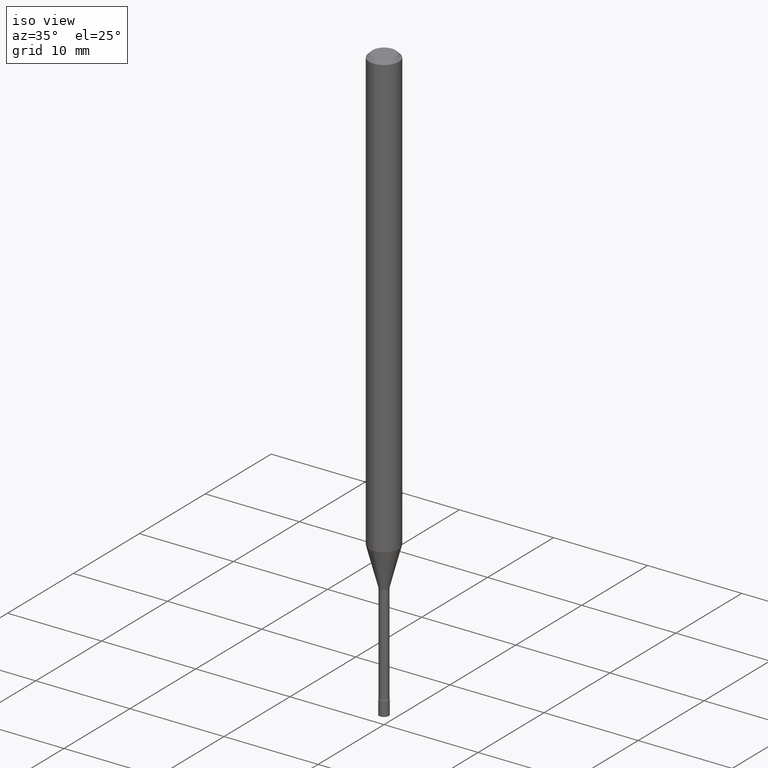
[diagram: clean part render]
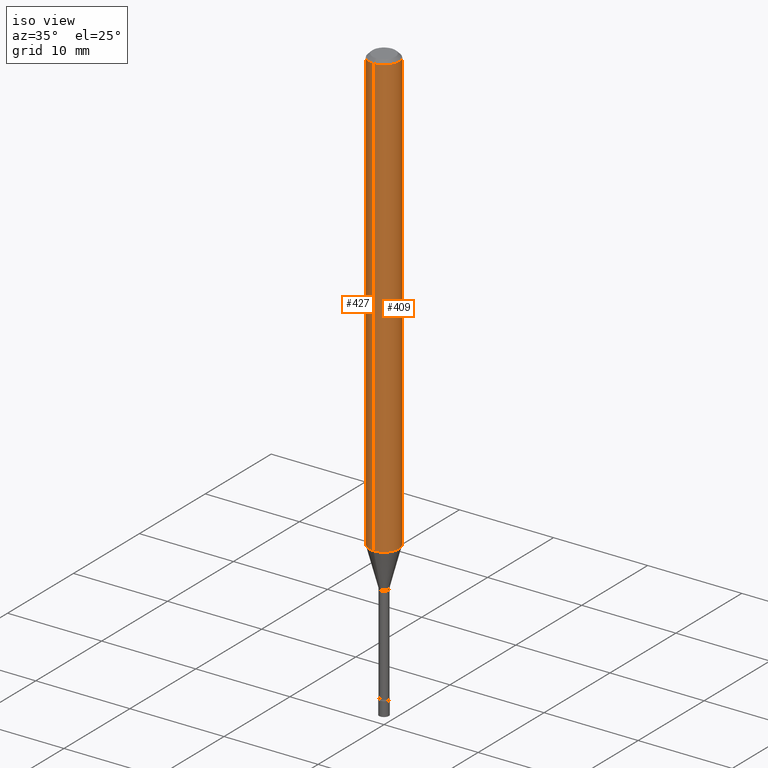
[diagram: same view with one multi-face feature highlighted, each face labeled with its STEP entity id]
A machine part, iso view. The highlighted faces form ONE feature: a constant-radius fillet chain: 2 tangent blend faces with common blend radius 1.5875 mm. The faces share edges in the B-rep.
Their STEP definitions:
[1] entity #427 (Cylinder):
#13 = CARTESIAN_POINT ( 'NONE',  ( 0.000000000000000000, 0.000000000000000000, 0.000000000000000000 ) ) ;
#31 = EDGE_CURVE ( 'NONE', #113, #166, #96, .T. ) ;
#38 = VERTEX_POINT ( 'NONE', #261 ) ;
#42 = CARTESIAN_POINT ( 'NONE',  ( 4.540931910727726052E-29, -6.483481952121574190E-15, -1.856909379709240415 ) ) ;
#46 = AXIS2_PLACEMENT_3D ( 'NONE', #228, #307, #482 ) ;
#48 = DIRECTION ( 'NONE',  ( -6.982962677686265922E-15, -1.000000000000000000, 4.370956789862821150E-15 ) ) ;
#58 = CARTESIAN_POINT ( 'NONE',  ( 4.440892098501082715E-16, 0.06249999999999995143, -0.01500000000000024751 ) ) ;
#84 = DIRECTION ( 'NONE',  ( -2.445424618103204141E-29, 3.491544618691502502E-15, 1.000000000000000000 ) ) ;
#89 = CYLINDRICAL_SURFACE ( 'NONE', #347, 0.06250000000000000000 ) ;
#94 = CARTESIAN_POINT ( 'NONE',  ( 4.440892098500625669E-16, 0.06250000000000000000, -2.182215386682189064E-16 ) ) ;
#96 = LINE ( 'NONE', #94, #99 ) ;
#99 = VECTOR ( 'NONE', #429, 39.37007874015748143 ) ;
#109 = CIRCLE ( 'NONE', #487, 0.06250000000000000000 ) ;
#113 = VERTEX_POINT ( 'NONE', #260 ) ;
#141 = VECTOR ( 'NONE', #216, 39.37007874015748143 ) ;
#150 = CIRCLE ( 'NONE', #46, 0.06250000000000000000 ) ;
#157 = FACE_OUTER_BOUND ( 'NONE', #291, .T. ) ;
#166 = VERTEX_POINT ( 'NONE', #58 ) ;
#209 = ORIENTED_EDGE ( 'NONE', *, *, #31, .F. ) ;
#216 = DIRECTION ( 'NONE',  ( -2.445424618103204141E-29, 3.491544618691502896E-15, 1.000000000000000000 ) ) ;
#228 = CARTESIAN_POINT ( 'NONE',  ( 3.668136927154813270E-31, -5.237316928037264353E-17, -0.01500000000000003067 ) ) ;
#240 = ORIENTED_EDGE ( 'NONE', *, *, #436, .T. ) ;
#248 = ORIENTED_EDGE ( 'NONE', *, *, #315, .F. ) ;
#260 = CARTESIAN_POINT ( 'NONE',  ( 4.440892098501077785E-16, 0.06249999999999350520, -1.856909379709240637 ) ) ;
#261 = CARTESIAN_POINT ( 'NONE',  ( -4.364351673553912750E-16, -0.06250000000000005551, -0.01499999999999981209 ) ) ;
#270 = CARTESIAN_POINT ( 'NONE',  ( -4.364351673553463099E-16, -0.06250000000000649480, -1.856909379709239971 ) ) ;
#291 = EDGE_LOOP ( 'NONE', ( #209, #240, #505, #248 ) ) ;
#300 = LINE ( 'NONE', #426, #141 ) ;
#307 = DIRECTION ( 'NONE',  ( -2.445424618103204141E-29, 3.491544618691502502E-15, 1.000000000000000000 ) ) ;
#315 = EDGE_CURVE ( 'NONE', #166, #38, #150, .T. ) ;
#328 = DIRECTION ( 'NONE',  ( -2.445424618103204141E-29, 3.491544618691502502E-15, 1.000000000000000000 ) ) ;
#335 = VERTEX_POINT ( 'NONE', #270 ) ;
#347 = AXIS2_PLACEMENT_3D ( 'NONE', #13, #328, #494 ) ;
#426 = CARTESIAN_POINT ( 'NONE',  ( -4.364351673553916201E-16, -0.06250000000000000000, 2.182215386682189064E-16 ) ) ;
#427 = ADVANCED_FACE ( 'NONE', ( #157 ), #89, .T. ) ;
#429 = DIRECTION ( 'NONE',  ( -2.445424618103204141E-29, 3.491544618691502896E-15, 1.000000000000000000 ) ) ;
#436 = EDGE_CURVE ( 'NONE', #113, #335, #109, .T. ) ;
#472 = EDGE_CURVE ( 'NONE', #335, #38, #300, .T. ) ;
#482 = DIRECTION ( 'NONE',  ( -6.982962677686265922E-15, -1.000000000000000000, 3.483106191921935554E-15 ) ) ;
#487 = AXIS2_PLACEMENT_3D ( 'NONE', #42, #84, #48 ) ;
#494 = DIRECTION ( 'NONE',  ( -6.982962677686265922E-15, -1.000000000000000000, 3.491544618691502502E-15 ) ) ;
#505 = ORIENTED_EDGE ( 'NONE', *, *, #472, .T. ) ;
[2] entity #409 (Cylinder):
#9 = AXIS2_PLACEMENT_3D ( 'NONE', #271, #317, #361 ) ;
#12 = EDGE_LOOP ( 'NONE', ( #470, #70, #60, #341 ) ) ;
#31 = EDGE_CURVE ( 'NONE', #113, #166, #96, .T. ) ;
#38 = VERTEX_POINT ( 'NONE', #261 ) ;
#45 = DIRECTION ( 'NONE',  ( -6.982962677686265922E-15, -1.000000000000000000, 3.491544618691502502E-15 ) ) ;
#58 = CARTESIAN_POINT ( 'NONE',  ( 4.440892098501082715E-16, 0.06249999999999995143, -0.01500000000000024751 ) ) ;
#60 = ORIENTED_EDGE ( 'NONE', *, *, #218, .F. ) ;
#70 = ORIENTED_EDGE ( 'NONE', *, *, #31, .T. ) ;
#87 = CYLINDRICAL_SURFACE ( 'NONE', #516, 0.06250000000000000000 ) ;
#94 = CARTESIAN_POINT ( 'NONE',  ( 4.440892098500625669E-16, 0.06250000000000000000, -2.182215386682189064E-16 ) ) ;
#96 = LINE ( 'NONE', #94, #99 ) ;
#99 = VECTOR ( 'NONE', #429, 39.37007874015748143 ) ;
#113 = VERTEX_POINT ( 'NONE', #260 ) ;
#141 = VECTOR ( 'NONE', #216, 39.37007874015748143 ) ;
#163 = CIRCLE ( 'NONE', #9, 0.06250000000000000000 ) ;
#166 = VERTEX_POINT ( 'NONE', #58 ) ;
#208 = CARTESIAN_POINT ( 'NONE',  ( 0.000000000000000000, 0.000000000000000000, 0.000000000000000000 ) ) ;
#216 = DIRECTION ( 'NONE',  ( -2.445424618103204141E-29, 3.491544618691502896E-15, 1.000000000000000000 ) ) ;
#218 = EDGE_CURVE ( 'NONE', #38, #166, #163, .T. ) ;
#259 = CIRCLE ( 'NONE', #391, 0.06250000000000000000 ) ;
#260 = CARTESIAN_POINT ( 'NONE',  ( 4.440892098501077785E-16, 0.06249999999999350520, -1.856909379709240637 ) ) ;
#261 = CARTESIAN_POINT ( 'NONE',  ( -4.364351673553912750E-16, -0.06250000000000005551, -0.01499999999999981209 ) ) ;
#270 = CARTESIAN_POINT ( 'NONE',  ( -4.364351673553463099E-16, -0.06250000000000649480, -1.856909379709239971 ) ) ;
#271 = CARTESIAN_POINT ( 'NONE',  ( 3.668136927154813270E-31, -5.237316928037264353E-17, -0.01500000000000003067 ) ) ;
#300 = LINE ( 'NONE', #426, #141 ) ;
#317 = DIRECTION ( 'NONE',  ( -2.445424618103204141E-29, 3.491544618691502502E-15, 1.000000000000000000 ) ) ;
#330 = FACE_OUTER_BOUND ( 'NONE', #12, .T. ) ;
#335 = VERTEX_POINT ( 'NONE', #270 ) ;
#341 = ORIENTED_EDGE ( 'NONE', *, *, #472, .F. ) ;
#361 = DIRECTION ( 'NONE',  ( -6.982962677686265922E-15, -1.000000000000000000, 3.483106191921935554E-15 ) ) ;
#367 = DIRECTION ( 'NONE',  ( -2.445424618103204141E-29, 3.491544618691502502E-15, 1.000000000000000000 ) ) ;
#372 = CARTESIAN_POINT ( 'NONE',  ( 4.540931910727726052E-29, -6.483481952121574190E-15, -1.856909379709240415 ) ) ;
#391 = AXIS2_PLACEMENT_3D ( 'NONE', #372, #367, #414 ) ;
#409 = ADVANCED_FACE ( 'NONE', ( #330 ), #87, .T. ) ;
#414 = DIRECTION ( 'NONE',  ( -6.982962677686265922E-15, -1.000000000000000000, 4.370956789862821150E-15 ) ) ;
#426 = CARTESIAN_POINT ( 'NONE',  ( -4.364351673553916201E-16, -0.06250000000000000000, 2.182215386682189064E-16 ) ) ;
#429 = DIRECTION ( 'NONE',  ( -2.445424618103204141E-29, 3.491544618691502896E-15, 1.000000000000000000 ) ) ;
#453 = EDGE_CURVE ( 'NONE', #335, #113, #259, .T. ) ;
#458 = DIRECTION ( 'NONE',  ( -2.445424618103204141E-29, 3.491544618691502502E-15, 1.000000000000000000 ) ) ;
#470 = ORIENTED_EDGE ( 'NONE', *, *, #453, .T. ) ;
#472 = EDGE_CURVE ( 'NONE', #335, #38, #300, .T. ) ;
#516 = AXIS2_PLACEMENT_3D ( 'NONE', #208, #458, #45 ) ;